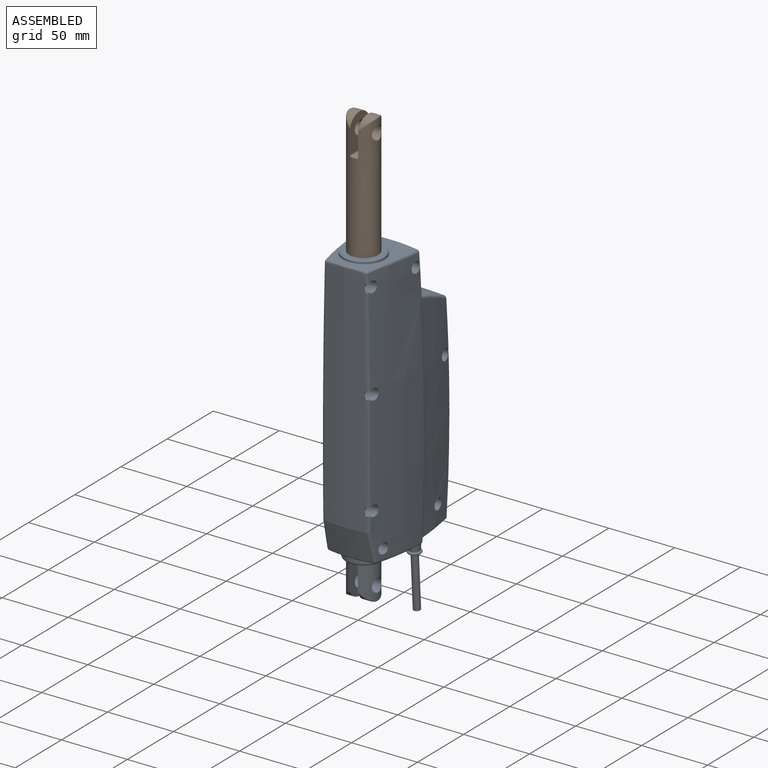
[diagram: assembled view]
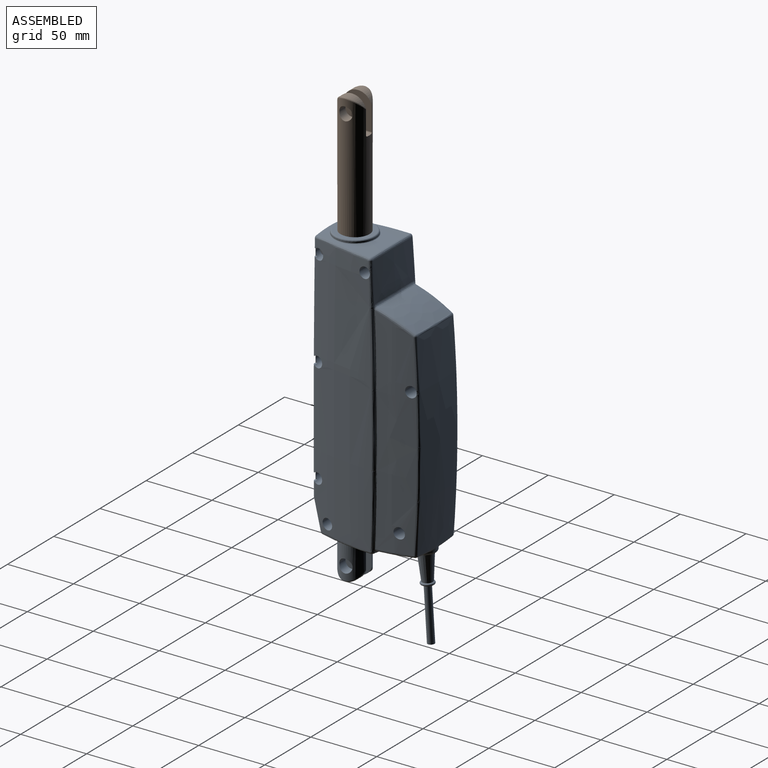
[diagram: assembled view, second angle]
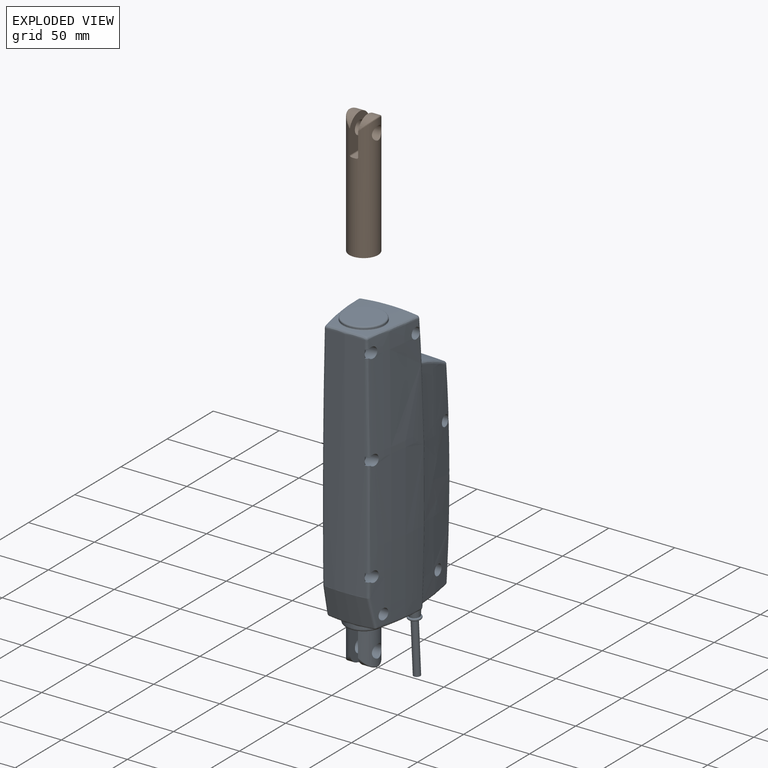
[diagram: exploded view]
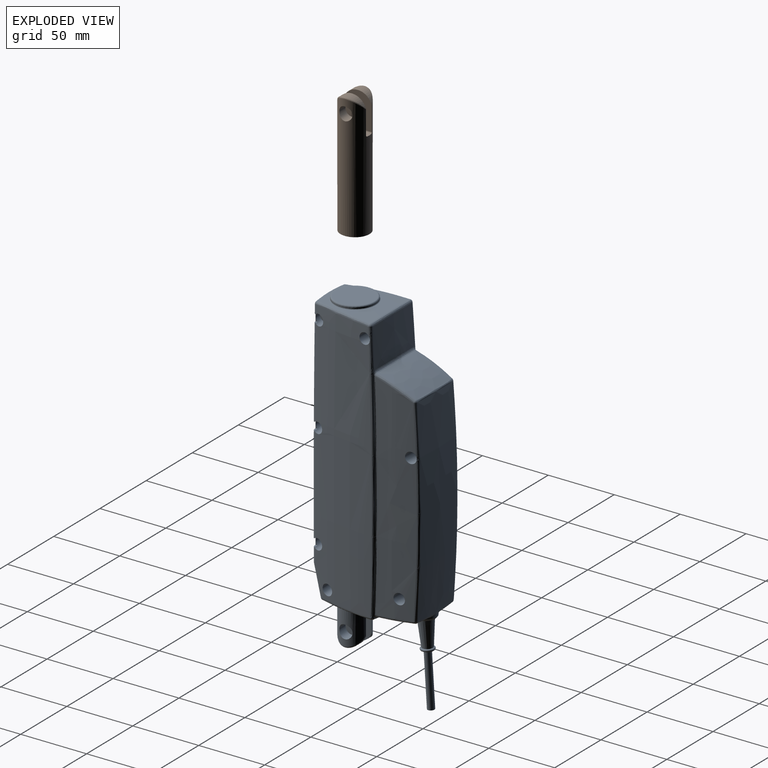
[diagram: exploded view, second angle]
ASSEMBLY  parts=2 mates=2
PART A: 160 faces, bbox 268x85.2x49.9 mm
  f0: bspline ~157.04x20.2mm, area 2891.3mm2, adj f1,f157,f158,f159
  f1: bspline ~19.63x2.65mm, area 44.2mm2, adj f0,f2,f154,f155,f156
  f2: bspline ~19.63x2.65mm, area 44.2mm2, adj f1,f3,f152,f153,f159
  f3: bspline ~6.54x3.16mm, area 5.3mm2, adj f2,f4,f151,f156
  f4: bspline ~6.58x3.54mm, area 10mm2, adj f3,f5,f151,f152
  f5: bspline ~3.04x1.46mm, area 4.1mm2, adj f4,f6,f150,f152
  f6: bspline ~18.07x2.56mm, area 25.3mm2, adj f5,f7,f149,f152
  f7: bspline ~2.22x2.12mm, area 3.4mm2, adj f6,f8,f148,f152
  f8: bspline ~10.89x1.7mm, area 13.5mm2, adj f7,f9,f147,f152
  f9: bspline ~1.96x1.57mm, area 2.1mm2, adj f8,f10,f146,f147
  f10: bspline ~28.73x4.37mm, area 82.7mm2, adj f9,f11,f142,f145,f146,f152,f153
  f11: bspline ~2.12x1.48mm, area 2.1mm2, adj f10,f12,f141,f145
  f12: bspline ~165.64x2.99mm, area 184.5mm2, adj f11,f13,f141,f142
  f13: bspline ~2.39x1.43mm, area 2.5mm2, adj f12,f14,f140,f141
  f14: bspline ~29.83x13.53mm, area 89.4mm2, adj f13,f15,f134,f136,f140,f142
  f15: bspline ~2.39x1.91mm, area 3mm2, adj f14,f16,f133,f140
  f16: bspline ~20.76x2.59mm, area 50.4mm2, adj f15,f17,f133,f134
  f17: bspline ~20.76x2.59mm, area 50.4mm2, adj f16,f18,f131,f132
  f18: bspline ~30.11x21.21mm, area 603mm2, adj f17,f19,f134,f158
  f19: bspline ~29.83x13.53mm, area 89.6mm2, adj f18,f20,f128,f129,f130,f131
  f20: bspline ~1.87x1.53mm, area 1.3mm2, adj f19,f21,f128,f131
  f21: bspline ~35.24x4.02mm, area 95.5mm2, adj f20,f22,f126,f127,f132
  f22: sphere r=2mm, area 4.7mm2, adj f21,f23,f125
  f23: bspline ~45.7x8.8mm, area 132.8mm2, adj f22,f24,f124,f126
  f24: bspline ~47.78x22.14mm, area 411.2mm2, adj f23,f25,f118,f123,f125
  f25: bspline ~15.07x2.85mm, area 45.2mm2, adj f24,f26,f117,f124
  f26: bspline ~15.07x2.85mm, area 45.2mm2, adj f25,f27,f117,f123
  f27: sphere r=2mm, area 3.6mm2, adj f26,f28,f116
  f28: bspline ~8.07x2.09mm, area 16.2mm2, adj f27,f29,f106,f114,f117
  f29: plane 2.12x1.46mm, normal (-1,0,0), area 2.2mm2, adj f28,f30,f114,f117
  f30: plane 6x1.43mm, normal (0,0,-1), area 3.3mm2, adj f29,f31,f114,f117
  f31: plane 2.26x1.46mm, normal (1,0,0), area 2.4mm2, adj f30,f32,f114,f117
  f32: bspline ~81.86x3.21mm, area 165.5mm2, adj f31,f33,f104,f106,f114,f117
  f33: plane 3.3x1.47mm, normal (-1,0,0), area 3.6mm2, adj f32,f34,f104,f117
  f34: plane 6x1.43mm, normal (0,0,-1), area 3.3mm2, adj f33,f35,f104,f117
  f35: plane 3.35x1.47mm, normal (1,0,0), area 3.7mm2, adj f34,f36,f104,f117
  f36: bspline ~89.72x2.15mm, area 181mm2, adj f35,f37,f102,f104,f106,f117
  f37: plane 3.34x1.47mm, normal (-1,0,0), area 3.7mm2, adj f36,f38,f102,f117
  f38: plane 6x1.43mm, normal (0,0,-1), area 3.3mm2, adj f37,f39,f102,f117
  f39: plane 3.29x1.47mm, normal (1,0,0), area 3.6mm2, adj f38,f40,f102,f117
  f40: bspline ~13.25x2.01mm, area 26.7mm2, adj f39,f41,f102,f106,f117
  f41: sphere r=2mm, area 0.7mm2, adj f40,f42,f101
  f42: bspline ~23.11x7.8mm, area 56.4mm2, adj f41,f43,f100,f106
  f43: cylinder r=150mm len=34.17mm, axis (-0.97,0.26,0), area 759.5mm2, adj f42,f44,f47,f98,f99,f101
  f44: bspline ~16.31x0.96mm, area 8.4mm2, adj f43,f45,f101,f117
  f45: sphere r=2mm, area 0.7mm2, adj f44,f46,f99
  f46: bspline ~183.39x3.62mm, area 433.8mm2, adj f45,f117,f124,f126
  f47: bspline ~17.46x2.82mm, area 34.4mm2, adj f43,f48,f97,f98,f100
  f48: bspline ~75.22x23.19mm, area 646.5mm2, adj f47,f49,f54,f72,f75,f96,f147,f148
  f49: cone r=4.86mm half-angle=4.9deg, axis (1,-0.06,0), area 612.4mm2, adj f48,f50,f96
  f50: torus R=4mm, axis (-1,0.06,0), area 91.5mm2, adj f49,f51
  f51: plane 8x7.98mm, normal (-1,0.06,0), area 29mm2, adj f50,f52
  f52: cylinder r=2.6mm len=40.25mm, axis (-1,0.06,0), area 653.5mm2, adj f51,f53
  f53: plane 5.2x5.19mm, normal (-1,0.06,0), area 21.2mm2, adj f52
  f54: bspline ~27.38x14.93mm, area 28.4mm2, adj f48,f55,f71,f97
  f55: cylinder r=14mm len=28mm, axis (-1,0,0), area 119.8mm2, adj f54,f56,f57,f71,f97
  f56: bspline ~7.45x2.51mm, area 3.6mm2, adj f55,f71,f97,f98
  f57: torus R=12mm, axis (1,0,0), area 262mm2, adj f55,f58
  f58: plane 24x24mm, normal (-1,0,0), area 164.1mm2, adj f57,f59,f64,f65,f70
  f59: cylinder r=1mm len=21.6mm, axis (0,1,0), area 33.5mm2, adj f58,f60,f64
  f60: plane 26.32x21.13mm, normal (0,0,1), area 431mm2, adj f59,f61,f62,f63,f64
  f61: cylinder r=5.05mm len=10.1mm, axis (0,0,-1), area 250.7mm2, adj f60,f64
  f62: cylinder r=11mm len=20.92mm, axis (0,0,-1), area 0mm2, adj f60,f63
  f63: bspline ~21.59x9.18mm, area 36mm2, adj f60,f62,f64
  f64: cylinder r=11mm len=26.3mm, axis (-1,0,0), area 590.6mm2, adj f58,f59,f60,f61,f63
  f65: cylinder r=1mm len=21.6mm, axis (0,-1,0), area 33.5mm2, adj f58,f66,f70
  f66: plane 26.32x21.13mm, normal (0,0,-1), area 431mm2, adj f65,f67,f68,f69,f70
  f67: cylinder r=5.05mm len=10.1mm, axis (0,0,-1), area 250.7mm2, adj f66,f70
  f68: cylinder r=11mm len=20.92mm, axis (0,0,-1), area 0mm2, adj f66,f69
  f69: bspline ~21.59x9.18mm, area 36mm2, adj f66,f68,f70
  f70: cylinder r=11mm len=26.3mm, axis (-1,0,0), area 590.5mm2, adj f58,f65,f66,f67,f69
  f71: bspline ~27.38x14.93mm, area 28.4mm2, adj f54,f55,f56,f96
  f72: bspline ~41.52x7.41mm, area 120.3mm2, adj f48,f73,f100,f106
  f73: sphere r=2mm, area 5.5mm2, adj f72,f74,f146,f147
  f74: cylinder r=2mm len=2.09mm, axis (1,0.04,-0.02), area 0.8mm2, adj f73,f106,f141,f145
  f75: bspline ~8.27x8.2mm, area 34.8mm2, adj f48,f76,f149,f151
  f76: bspline ~8.27x8.2mm, area 34.8mm2, adj f75,f77,f96,f151
  f77: revolved ~20.51x2.88mm, area 59.4mm2, adj f76,f78,f81,f95,f96
  f78: plane 2.69x0.26mm, normal (0,0,1), area 0.1mm2, adj f77,f79,f151
  f79: bspline ~3.04x1.46mm, area 4.1mm2, adj f78,f80,f95,f155
  f80: bspline ~6.58x3.54mm, area 10mm2, adj f79,f151,f155,f156
  f81: bspline ~4.32x4.13mm, area 11.7mm2, adj f77,f82,f94,f96
  f82: bspline ~2.22x2.12mm, area 3.4mm2, adj f81,f83,f95,f155
  f83: bspline ~10.89x1.7mm, area 13.5mm2, adj f82,f84,f94,f155
  f84: bspline ~1.96x1.57mm, area 2.1mm2, adj f83,f85,f93,f94
  f85: bspline ~1.09x0.85mm, area 0.1mm2, adj f84,f86,f90,f93
  f86: bspline ~1.12x1.02mm, area 0.5mm2, adj f85,f87,f89,f93
  f87: bspline ~2.12x1.48mm, area 2.1mm2, adj f86,f88,f93,f127
  f88: bspline ~165.64x2.99mm, area 186.6mm2, adj f87,f127,f128,f129
  f89: cylinder r=2mm len=2.09mm, axis (1,0.04,0.02), area 0.8mm2, adj f86,f90,f126,f127
  f90: sphere r=2mm, area 5.5mm2, adj f85,f89,f91,f94
  f91: bspline ~41.52x7.41mm, area 120.3mm2, adj f90,f92,f96,f126
  f92: sphere r=2mm, area 3.1mm2, adj f91,f98,f99
  f93: bspline ~28.73x4.37mm, area 82.7mm2, adj f84,f85,f86,f87,f129,f154,f155
  f94: bspline ~12.73x2.88mm, area 32.8mm2, adj f81,f83,f84,f90,f96
  f95: bspline ~18.07x2.56mm, area 25.3mm2, adj f77,f79,f82,f155
  f96: bspline ~75.22x23.19mm, area 646.4mm2, adj f48,f49,f71,f76,f77,f81,f91,f94
  f97: bspline ~7.45x2.51mm, area 3.6mm2, adj f47,f54,f55,f56
  f98: bspline ~17.46x2.82mm, area 34.4mm2, adj f43,f47,f56,f92,f96
  f99: bspline ~23.11x7.8mm, area 56.4mm2, adj f43,f45,f92,f126
  f100: sphere r=2mm, area 3.1mm2, adj f42,f47,f72
  f101: bspline ~16.31x0.96mm, area 8.4mm2, adj f41,f43,f44,f117
  f102: cylinder r=4.15mm len=9.4mm, axis (0,0,-1), area 199.8mm2, adj f36,f37,f38,f39,f40,f103,f106
  f103: plane 8.3x8.3mm, normal (0,0,-1), area 54.1mm2, adj f102
  f104: cylinder r=4.15mm len=9.41mm, axis (0,0,-1), area 200mm2, adj f32,f33,f34,f35,f36,f105,f106
  f105: plane 8.3x8.3mm, normal (0,0,-1), area 54.1mm2, adj f104
  f106: revolved ~199.52x48.54mm, area 9156.3mm2, adj f28,f32,f36,f40,f42,f72,f74,f102
  f107: cylinder r=4.15mm len=10.02mm, axis (0,0,-1), area 259.7mm2, adj f106,f108
  f108: plane 8.3x8.3mm, normal (0,0,-1), area 54.1mm2, adj f107
  f109: cylinder r=4.15mm len=13.41mm, axis (0,0,-1), area 344.7mm2, adj f106,f110,f111
  f110: plane 8.3x8.3mm, normal (0,0,-1), area 54.1mm2, adj f109
  f111: bspline ~35.24x4.02mm, area 92.4mm2, adj f106,f109,f112,f133,f140,f141
  f112: sphere r=2mm, area 4.7mm2, adj f111,f113,f116
  f113: bspline ~21.78x2.89mm, area 62.1mm2, adj f112,f123,f125,f133
  f114: cylinder r=4.15mm len=8.3mm, axis (0,0,-1), area 177.9mm2, adj f28,f29,f30,f31,f32,f106,f115
  f115: plane 8.3x8.3mm, normal (0,0,-1), area 54.1mm2, adj f114
  f116: bspline ~45.7x8.8mm, area 132.8mm2, adj f27,f106,f112,f123
  f117: cylinder r=150mm len=177.14mm, axis (-1,0,0), area 5615.7mm2, adj f25,f26,f28,f29,f30,f31,f32,f33
  f118: bspline ~32.14x16.5mm, area 37.5mm2, adj f24,f119,f122
  f119: cylinder r=15.5mm len=31mm, axis (-1,0,0), area 85.5mm2, adj f118,f120,f122
  f120: torus R=14.5mm, axis (1,0,0), area 149.4mm2, adj f119,f121
  f121: plane 29x29mm, normal (1,0,0), area 660.5mm2, adj f120
  f122: bspline ~32.14x16.5mm, area 37.4mm2, adj f118,f119,f123
  f123: bspline ~47.78x22.14mm, area 410.9mm2, adj f24,f26,f113,f116,f122
  f124: sphere r=2mm, area 3.6mm2, adj f23,f25,f46
  f125: bspline ~21.78x2.89mm, area 62.1mm2, adj f22,f24,f113,f132
  f126: revolved ~199.52x48.54mm, area 9408.4mm2, adj f21,f23,f46,f89,f91,f99,f127
  f127: bspline ~170.22x4.3mm, area 397.6mm2, adj f21,f87,f88,f89,f126,f128
  f128: bspline ~2.39x1.43mm, area 2.5mm2, adj f19,f20,f88,f127
  f129: revolved ~163.24x31.21mm, area 4512.1mm2, adj f19,f88,f93,f157
  f130: sphere r=2mm, area 3.1mm2, adj f19,f157,f158
  f131: bspline ~2.39x1.91mm, area 3mm2, adj f17,f19,f20,f132
  f132: bspline ~32.38x22.91mm, area 642.6mm2, adj f17,f21,f125,f131,f133
  f133: bspline ~32.38x22.91mm, area 642.5mm2, adj f15,f16,f111,f113,f132
  f134: bspline ~30.11x21.21mm, area 603mm2, adj f14,f16,f18,f135
  f135: bspline ~19.55x2.14mm, area 38.4mm2, adj f134,f136,f158,f159
  f136: sphere r=2mm, area 3.1mm2, adj f14,f135,f137
  f137: bspline ~153.01x5.09mm, area 416.1mm2, adj f136,f138,f142,f153,f159
  f138: cylinder r=4.15mm len=11.62mm, axis (0,0,-1), area 298.8mm2, adj f137,f139,f142
  f139: plane 8.3x8.3mm, normal (0,0,-1), area 54.1mm2, adj f138
  f140: bspline ~1.87x1.53mm, area 1.3mm2, adj f13,f14,f15,f111
  f141: bspline ~170.22x4.3mm, area 393.4mm2, adj f11,f12,f13,f74,f106,f111
  f142: revolved ~163.24x31.21mm, area 4404.4mm2, adj f10,f12,f14,f137,f138,f143
  f143: cylinder r=4.15mm len=12.15mm, axis (0,0,-1), area 315.5mm2, adj f142,f144
  f144: plane 8.3x8.3mm, normal (0,0,-1), area 54.1mm2, adj f143
  f145: bspline ~1.12x1.02mm, area 0.5mm2, adj f10,f11,f74,f146
  f146: bspline ~1.09x0.85mm, area 0.1mm2, adj f9,f10,f73,f145
  f147: bspline ~12.73x2.88mm, area 32.8mm2, adj f8,f9,f48,f73,f148
  f148: bspline ~4.32x4.13mm, area 11.7mm2, adj f7,f48,f147,f149
  f149: revolved ~20.51x2.88mm, area 59.4mm2, adj f6,f48,f75,f148,f150
  f150: plane 2.69x0.26mm, normal (0,0,-1), area 0.1mm2, adj f5,f149,f151
  f151: cylinder r=8mm len=16mm, axis (-1,0,0), area 20.3mm2, adj f3,f4,f75,f76,f78,f80,f150,f156
  f152: bspline ~29.59x14.87mm, area 312.9mm2, adj f2,f4,f5,f6,f7,f8,f10
  f153: sphere r=2mm, area 4.2mm2, adj f2,f10,f137
  f154: sphere r=2mm, area 4.2mm2, adj f1,f93,f157
  f155: bspline ~29.59x14.87mm, area 312.9mm2, adj f1,f79,f80,f82,f83,f93,f95
  f156: bspline ~6.54x3.16mm, area 5.3mm2, adj f1,f3,f80,f151
  f157: bspline ~153.01x5.09mm, area 416.1mm2, adj f0,f129,f130,f154
  f158: bspline ~19.55x2.14mm, area 38.4mm2, adj f0,f18,f130,f135
  f159: bspline ~157.04x20.2mm, area 2891.3mm2, adj f0,f2,f135,f137
PART B: 13 faces, bbox 94.9x22x22.3 mm
  f0: cylinder r=11mm len=20.88mm, axis (0,0,1), area 122.5mm2, adj f4,f5
  f1: cylinder r=11mm len=20.88mm, axis (0,0,1), area 122.4mm2, adj f7,f8
  f2: cylinder r=5.05mm len=10.1mm, axis (0,0,1), area 249.1mm2, adj f8,f11
  f3: cylinder r=5.05mm len=10.1mm, axis (0,0,1), area 249.1mm2, adj f5,f11
  f4: bspline ~21.72x9.41mm, area 36mm2, adj f0,f5,f11
  f5: plane 26.02x21.1mm, normal (0,0,-1), area 424.2mm2, adj f0,f3,f4,f6,f11
  f6: cylinder r=1mm len=21.58mm, axis (0,1,0), area 33.5mm2, adj f5,f10,f11
  f7: bspline ~21.72x9.41mm, area 36mm2, adj f1,f8,f11
  f8: plane 26.02x21.1mm, normal (0,0,1), area 424.2mm2, adj f1,f2,f7,f9,f11
  f9: cylinder r=1mm len=21.58mm, axis (0,1,0), area 33.5mm2, adj f8,f10,f11
  f10: plane 22x4.3mm, normal (1,0,0), area 94mm2, adj f6,f9,f11
  f11: cylinder r=11mm len=93.7mm, axis (-1,0,0), area 5831.2mm2, adj f2,f3,f4,f5,f6,f7,f8,f9
  f12: plane 22x22mm, normal (-1,0,0), area 380.1mm2, adj f11
PLACE A rot(axis=(0,-1,0),90deg) t=(33.38,36.9,-58.06)mm
PLACE B rot(axis=(0,-1,0),90deg) t=(33.38,36.9,6.94)mm
MATE slider B.f11 <-> A.f55  axis (0,0,-1) through (33.38,36.9,68.94)mm
MATE planar A.f55 <-> B.f11  axis (0,0,1) through (33.38,36.9,68.94)mm
